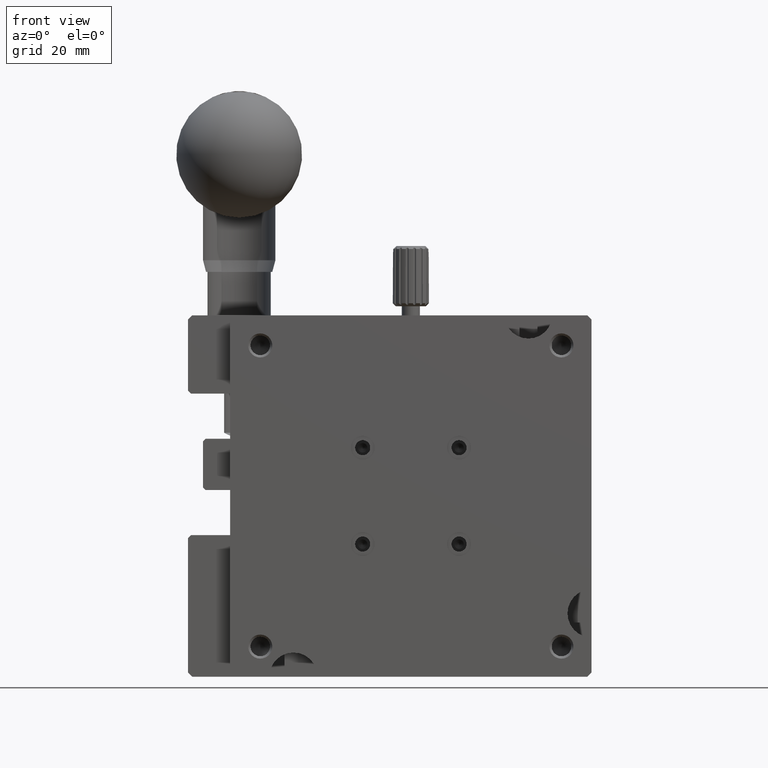
[diagram: clean part render]
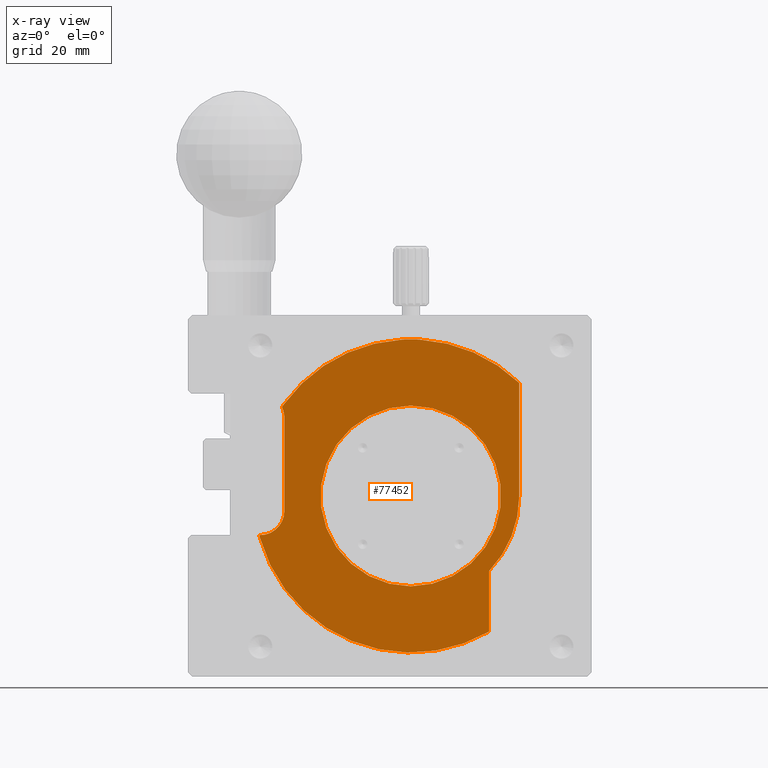
[diagram: x-ray — body ghosted, one internal face saturated and labeled with its STEP entity id]
A machine part, front view, then the same camera in x-ray: the body is ghosted and one INTERNAL B-rep face — a face not visible from any outside direction — is saturated and labeled: STEP entity #77452.
In plain terms, the highlighted planar face has unit normal (0, 1, 0).
Its self-contained STEP definition (entity closure, byte-faithful):
#207 = VERTEX_POINT ( 'NONE', #15928 ) ;
#444 = AXIS2_PLACEMENT_3D ( 'NONE', #42604, #16956, #56950 ) ;
#536 = ORIENTED_EDGE ( 'NONE', *, *, #17704, .F. ) ;
#802 = CARTESIAN_POINT ( 'NONE',  ( 9.000000000000005329, 7.700000000000000178, -32.50000000000000000 ) ) ;
#846 = VERTEX_POINT ( 'NONE', #5937 ) ;
#975 = CIRCLE ( 'NONE', #49458, 25.99999999999910472 ) ;
#1039 = CARTESIAN_POINT ( 'NONE',  ( 31.50000000001103473, 7.700000000000000178, -4.044000000000852246 ) ) ;
#1493 = EDGE_CURVE ( 'NONE', #16282, #16282, #25706, .T. ) ;
#1580 = CARTESIAN_POINT ( 'NONE',  ( 5.000000000000000000, 7.700000000000000178, -32.50000000000000000 ) ) ;
#1794 = CARTESIAN_POINT ( 'NONE',  ( 48.00000000000000000, 7.700000000000000178, -30.00010040186520399 ) ) ;
#1817 = CIRCLE ( 'NONE', #43330, 25.99999999927279859 ) ;
#2012 = VERTEX_POINT ( 'NONE', #19681 ) ;
#2201 = LINE ( 'NONE', #81134, #62201 ) ;
#2389 = CARTESIAN_POINT ( 'NONE',  ( 43.00000000000000000, 7.700000000000000178, -42.45000000000011653 ) ) ;
#3719 = EDGE_CURVE ( 'NONE', #27814, #58108, #76946, .T. ) ;
#4121 = EDGE_CURVE ( 'NONE', #58108, #47908, #80548, .T. ) ;
#4912 = EDGE_CURVE ( 'NONE', #70804, #2012, #60430, .T. ) ;
#5504 = CARTESIAN_POINT ( 'NONE',  ( 31.24999999989491073, 7.700000000000000178, -4.029999999994765325 ) ) ;
#5937 = CARTESIAN_POINT ( 'NONE',  ( 8.916000002305016991, 7.700000000000000178, -14.78499999680525612 ) ) ;
#6758 = DIRECTION ( 'NONE',  ( 1.507875021427675565E-14, 0.000000000000000000, -1.000000000000000000 ) ) ;
#8014 = EDGE_CURVE ( 'NONE', #9902, #66397, #14759, .T. ) ;
#8724 = CARTESIAN_POINT ( 'NONE',  ( 30.00000000000000000, 7.700000000000000178, -29.99993453977009850 ) ) ;
#9129 = VERTEX_POINT ( 'NONE', #17765 ) ;
#9902 = VERTEX_POINT ( 'NONE', #63383 ) ;
#11077 = EDGE_CURVE ( 'NONE', #9129, #79099, #975, .T. ) ;
#11087 = AXIS2_PLACEMENT_3D ( 'NONE', #55885, #22406, #81431 ) ;
#14623 = AXIS2_PLACEMENT_3D ( 'NONE', #48129, #48550, #73300 ) ;
#14759 = CIRCLE ( 'NONE', #52224, 25.99999999997100275 ) ;
#15762 = CARTESIAN_POINT ( 'NONE',  ( 5.000000000000000000, 7.700000000000000178, -36.50000000000000000 ) ) ;
#15928 = CARTESIAN_POINT ( 'NONE',  ( 9.000000000000001776, 7.700000000000000178, -17.00093953153909609 ) ) ;
#16234 = EDGE_LOOP ( 'NONE', ( #45032 ) ) ;
#16282 = VERTEX_POINT ( 'NONE', #29727 ) ;
#16380 = AXIS2_PLACEMENT_3D ( 'NONE', #42913, #56826, #55951 ) ;
#16956 = DIRECTION ( 'NONE',  ( -0.000000000000000000, 1.000000000000000000, -0.000000000000000000 ) ) ;
#17704 = EDGE_CURVE ( 'NONE', #79099, #41814, #51092, .T. ) ;
#17765 = CARTESIAN_POINT ( 'NONE',  ( 28.75000000010299317, 7.700000000000000178, -4.029999999994893223 ) ) ;
#19681 = CARTESIAN_POINT ( 'NONE',  ( 5.000000000000000000, 7.700000000000000178, -36.49999999999999289 ) ) ;
#19960 = CARTESIAN_POINT ( 'NONE',  ( 29.99241115303990313, 7.700000000000000178, -29.97302398867919848 ) ) ;
#19999 = CARTESIAN_POINT ( 'NONE',  ( 30.00000000000000000, 7.700000000000000178, -30.00000000000000000 ) ) ;
#20121 = EDGE_CURVE ( 'NONE', #846, #54113, #69084, .T. ) ;
#20239 = ORIENTED_EDGE ( 'NONE', *, *, #76164, .F. ) ;
#21508 = DIRECTION ( 'NONE',  ( -0.000000000000000000, 0.000000000000000000, -1.000000000000000000 ) ) ;
#21611 = AXIS2_PLACEMENT_3D ( 'NONE', #1580, #22739, #49265 ) ;
#21942 = DIRECTION ( 'NONE',  ( 0.000000000000000000, 0.000000000000000000, -1.000000000000000000 ) ) ;
#22019 = ORIENTED_EDGE ( 'NONE', *, *, #27820, .F. ) ;
#22406 = DIRECTION ( 'NONE',  ( -0.000000000000000000, 1.000000000000000000, -0.000000000000000000 ) ) ;
#22739 = DIRECTION ( 'NONE',  ( -0.000000000000000000, 1.000000000000000000, -0.000000000000000000 ) ) ;
#25706 = CIRCLE ( 'NONE', #36789, 15.00000000000000000 ) ;
#26210 = ORIENTED_EDGE ( 'NONE', *, *, #11077, .F. ) ;
#27814 = VERTEX_POINT ( 'NONE', #1794 ) ;
#27820 = EDGE_CURVE ( 'NONE', #54757, #27814, #2201, .T. ) ;
#27822 = ORIENTED_EDGE ( 'NONE', *, *, #63581, .T. ) ;
#27862 = DIRECTION ( 'NONE',  ( 0.000000000000000000, 0.000000000000000000, -1.000000000000000000 ) ) ;
#28209 = DIRECTION ( 'NONE',  ( -0.000000000000000000, 1.000000000000000000, -0.000000000000000000 ) ) ;
#28960 = ORIENTED_EDGE ( 'NONE', *, *, #55254, .F. ) ;
#28984 = DIRECTION ( 'NONE',  ( 0.000000000000000000, 0.000000000000000000, -1.000000000000000000 ) ) ;
#29682 = DIRECTION ( 'NONE',  ( -0.000000000000000000, 1.000000000000000000, -0.000000000000000000 ) ) ;
#29727 = CARTESIAN_POINT ( 'NONE',  ( 30.00000000000000000, 7.700000000000000178, -45.00000000000000000 ) ) ;
#31397 = CARTESIAN_POINT ( 'NONE',  ( 43.00000000000002132, 7.700000000000000178, -52.51700000000020196 ) ) ;
#32578 = LINE ( 'NONE', #33859, #79701 ) ;
#33036 = AXIS2_PLACEMENT_3D ( 'NONE', #34363, #60870, #27862 ) ;
#33397 = FACE_OUTER_BOUND ( 'NONE', #71816, .T. ) ;
#33680 = CARTESIAN_POINT ( 'NONE',  ( 43.00000000000000000, 7.700000000000000178, -29.97302398867919848 ) ) ;
#33826 = DIRECTION ( 'NONE',  ( 0.000000000000000000, 1.000000000000000000, 0.000000000000000000 ) ) ;
#33859 = CARTESIAN_POINT ( 'NONE',  ( 9.000000000000001776, 7.700000000000000178, -17.00093964432599947 ) ) ;
#34363 = CARTESIAN_POINT ( 'NONE',  ( 30.00085688019370167, 7.700000000000000178, -29.99778443734150457 ) ) ;
#34715 = DIRECTION ( 'NONE',  ( 0.000000000000000000, 0.000000000000000000, -1.000000000000000000 ) ) ;
#35479 = EDGE_CURVE ( 'NONE', #47908, #9902, #62612, .T. ) ;
#35781 = DIRECTION ( 'NONE',  ( 0.000000000000000000, 0.000000000000000000, -1.000000000000000000 ) ) ;
#36789 = AXIS2_PLACEMENT_3D ( 'NONE', #19999, #40397, #79874 ) ;
#37248 = CARTESIAN_POINT ( 'NONE',  ( 28.50000000016791191, 7.700000000000000178, -4.043999999989932093 ) ) ;
#40397 = DIRECTION ( 'NONE',  ( 0.000000000000000000, -1.000000000000000000, 0.000000000000000000 ) ) ;
#41814 = VERTEX_POINT ( 'NONE', #1039 ) ;
#42416 = EDGE_CURVE ( 'NONE', #54113, #9129, #1817, .T. ) ;
#42604 = CARTESIAN_POINT ( 'NONE',  ( 5.000000000000000000, 7.700000000000000178, -17.00093941875219983 ) ) ;
#42913 = CARTESIAN_POINT ( 'NONE',  ( 29.92129450573410310, 7.700000000000000178, -29.99602668330609845 ) ) ;
#43330 = AXIS2_PLACEMENT_3D ( 'NONE', #68799, #29682, #35781 ) ;
#43546 = DIRECTION ( 'NONE',  ( 1.000000000000000000, 0.000000000000000000, -0.000000000000000000 ) ) ;
#43825 = EDGE_CURVE ( 'NONE', #57215, #207, #48931, .T. ) ;
#44202 = AXIS2_PLACEMENT_3D ( 'NONE', #55833, #61475, #21942 ) ;
#44651 = CARTESIAN_POINT ( 'NONE',  ( 4.825000000000423839, 7.700000000000000178, -36.50000000000000000 ) ) ;
#45032 = ORIENTED_EDGE ( 'NONE', *, *, #1493, .F. ) ;
#47162 = CIRCLE ( 'NONE', #11087, 26.00000000000000000 ) ;
#47186 = ORIENTED_EDGE ( 'NONE', *, *, #20121, .F. ) ;
#47908 = VERTEX_POINT ( 'NONE', #31397 ) ;
#48129 = CARTESIAN_POINT ( 'NONE',  ( 30.00000000000000000, 7.700000000000000178, -30.00010040201140171 ) ) ;
#48550 = DIRECTION ( 'NONE',  ( -0.000000000000000000, 1.000000000000000000, -0.000000000000000000 ) ) ;
#48931 = CIRCLE ( 'NONE', #444, 4.000000000000010658 ) ;
#49265 = DIRECTION ( 'NONE',  ( 0.000000000000000000, 0.000000000000000000, -1.000000000000000000 ) ) ;
#49458 = AXIS2_PLACEMENT_3D ( 'NONE', #8724, #28209, #34715 ) ;
#51092 = CIRCLE ( 'NONE', #16380, 26.00000000016629542 ) ;
#52224 = AXIS2_PLACEMENT_3D ( 'NONE', #66628, #67463, #6758 ) ;
#54113 = VERTEX_POINT ( 'NONE', #37248 ) ;
#54757 = VERTEX_POINT ( 'NONE', #79764 ) ;
#55091 = DIRECTION ( 'NONE',  ( -0.000000000000000000, 1.000000000000000000, -0.000000000000000000 ) ) ;
#55254 = EDGE_CURVE ( 'NONE', #70804, #207, #32578, .T. ) ;
#55571 = DIRECTION ( 'NONE',  ( -0.000000000000000000, 0.000000000000000000, -1.000000000000000000 ) ) ;
#55573 = ORIENTED_EDGE ( 'NONE', *, *, #4121, .F. ) ;
#55833 = CARTESIAN_POINT ( 'NONE',  ( 29.99870272680300332, 7.700000000000000178, -30.00076963985799949 ) ) ;
#55885 = CARTESIAN_POINT ( 'NONE',  ( 30.00095061210299718, 7.700000000000000178, -30.00074962187400018 ) ) ;
#55951 = DIRECTION ( 'NONE',  ( 0.000000000000000000, 0.000000000000000000, -1.000000000000000000 ) ) ;
#56826 = DIRECTION ( 'NONE',  ( -0.000000000000000000, 1.000000000000000000, -0.000000000000000000 ) ) ;
#56950 = DIRECTION ( 'NONE',  ( -8.890457814381112693E-15, 0.000000000000000000, -1.000000000000000000 ) ) ;
#57215 = VERTEX_POINT ( 'NONE', #85161 ) ;
#58108 = VERTEX_POINT ( 'NONE', #2389 ) ;
#58368 = ORIENTED_EDGE ( 'NONE', *, *, #35479, .F. ) ;
#58611 = ORIENTED_EDGE ( 'NONE', *, *, #43825, .T. ) ;
#59119 = DIRECTION ( 'NONE',  ( -2.238488574362820159E-16, 0.000000000000000000, 1.000000000000000000 ) ) ;
#60271 = ORIENTED_EDGE ( 'NONE', *, *, #3719, .F. ) ;
#60430 = CIRCLE ( 'NONE', #21611, 3.999999999999982681 ) ;
#60821 = EDGE_CURVE ( 'NONE', #66397, #2012, #62223, .T. ) ;
#60870 = DIRECTION ( 'NONE',  ( 0.000000000000000000, -1.000000000000000000, 0.000000000000000000 ) ) ;
#61185 = AXIS2_PLACEMENT_3D ( 'NONE', #69361, #55091, #28984 ) ;
#61475 = DIRECTION ( 'NONE',  ( -0.000000000000000000, 1.000000000000000000, -0.000000000000000000 ) ) ;
#62201 = VECTOR ( 'NONE', #55571, 1000.000000000000000 ) ;
#62223 = LINE ( 'NONE', #15762, #80123 ) ;
#62612 = CIRCLE ( 'NONE', #61185, 26.00000000000000711 ) ;
#62717 = ORIENTED_EDGE ( 'NONE', *, *, #4912, .T. ) ;
#63383 = CARTESIAN_POINT ( 'NONE',  ( 4.959999999845924989, 7.700000000000000178, -36.99999999944954254 ) ) ;
#63581 = EDGE_CURVE ( 'NONE', #846, #57215, #63606, .T. ) ;
#63606 = CIRCLE ( 'NONE', #33036, 25.99999999990910382 ) ;
#64885 = ORIENTED_EDGE ( 'NONE', *, *, #60821, .F. ) ;
#65992 = FACE_BOUND ( 'NONE', #16234, .T. ) ;
#66397 = VERTEX_POINT ( 'NONE', #44651 ) ;
#66421 = PLANE ( 'NONE',  #79038 ) ;
#66628 = CARTESIAN_POINT ( 'NONE',  ( 29.99241115303990313, 7.700000000000000178, -29.97302398867919848 ) ) ;
#67463 = DIRECTION ( 'NONE',  ( -0.000000000000000000, 1.000000000000000000, -0.000000000000000000 ) ) ;
#68799 = CARTESIAN_POINT ( 'NONE',  ( 30.07870549421540218, 7.700000000000000178, -29.99602668241400139 ) ) ;
#69084 = CIRCLE ( 'NONE', #44202, 26.00000000000000711 ) ;
#69361 = CARTESIAN_POINT ( 'NONE',  ( 30.00005420853400651, 7.700000000000000178, -30.00030820438010437 ) ) ;
#70804 = VERTEX_POINT ( 'NONE', #802 ) ;
#71816 = EDGE_LOOP ( 'NONE', ( #58368, #55573, #60271, #22019, #20239, #536, #26210, #79896, #47186, #27822, #58611, #28960, #62717, #64885, #81336 ) ) ;
#72887 = VECTOR ( 'NONE', #21508, 1000.000000000000000 ) ;
#72918 = DIRECTION ( 'NONE',  ( 0.000000000000000000, -0.000000000000000000, 1.000000000000000000 ) ) ;
#73300 = DIRECTION ( 'NONE',  ( -2.698458740408366767E-15, 0.000000000000000000, -1.000000000000000000 ) ) ;
#76164 = EDGE_CURVE ( 'NONE', #41814, #54757, #47162, .T. ) ;
#76946 = CIRCLE ( 'NONE', #14623, 18.00000000000000000 ) ;
#77452 = ADVANCED_FACE ( 'NONE', ( #33397, #65992 ), #66421, .F. ) ;
#79038 = AXIS2_PLACEMENT_3D ( 'NONE', #19960, #33826, #72918 ) ;
#79099 = VERTEX_POINT ( 'NONE', #5504 ) ;
#79701 = VECTOR ( 'NONE', #59119, 1000.000000000000000 ) ;
#79764 = CARTESIAN_POINT ( 'NONE',  ( 47.99999999999999289, 7.700000000000000178, -11.23817460851173600 ) ) ;
#79874 = DIRECTION ( 'NONE',  ( 0.000000000000000000, 0.000000000000000000, -1.000000000000000000 ) ) ;
#79896 = ORIENTED_EDGE ( 'NONE', *, *, #42416, .F. ) ;
#80123 = VECTOR ( 'NONE', #43546, 1000.000000000000000 ) ;
#80548 = LINE ( 'NONE', #33680, #72887 ) ;
#81134 = CARTESIAN_POINT ( 'NONE',  ( 48.00000000000000000, 7.700000000000000178, -29.97302398867919848 ) ) ;
#81336 = ORIENTED_EDGE ( 'NONE', *, *, #8014, .F. ) ;
#81431 = DIRECTION ( 'NONE',  ( 0.000000000000000000, 0.000000000000000000, -1.000000000000000000 ) ) ;
#85161 = CARTESIAN_POINT ( 'NONE',  ( 8.592999999999934246, 7.700000000000000178, -15.24300000000027033 ) ) ;